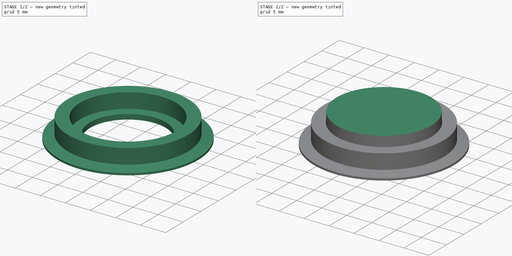
[diagram: build sequence overview — one tinted view per stage of 2, left to right]
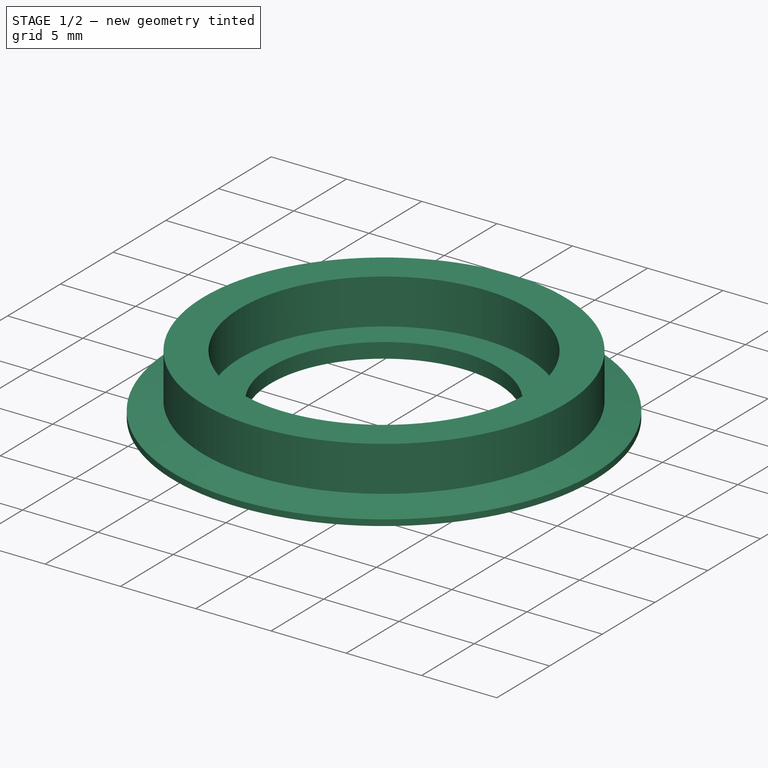
[diagram: stage 1 of 2 — iso view after this stage's code; geometry added in this stage tinted green]
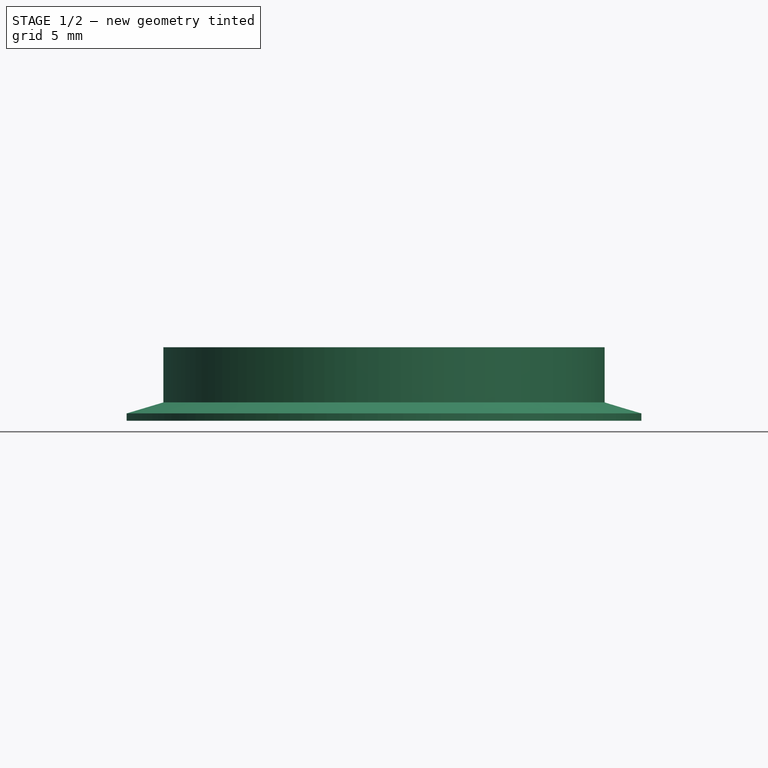
[diagram: stage 1 of 2 — front view after this stage's code; geometry added in this stage tinted green]
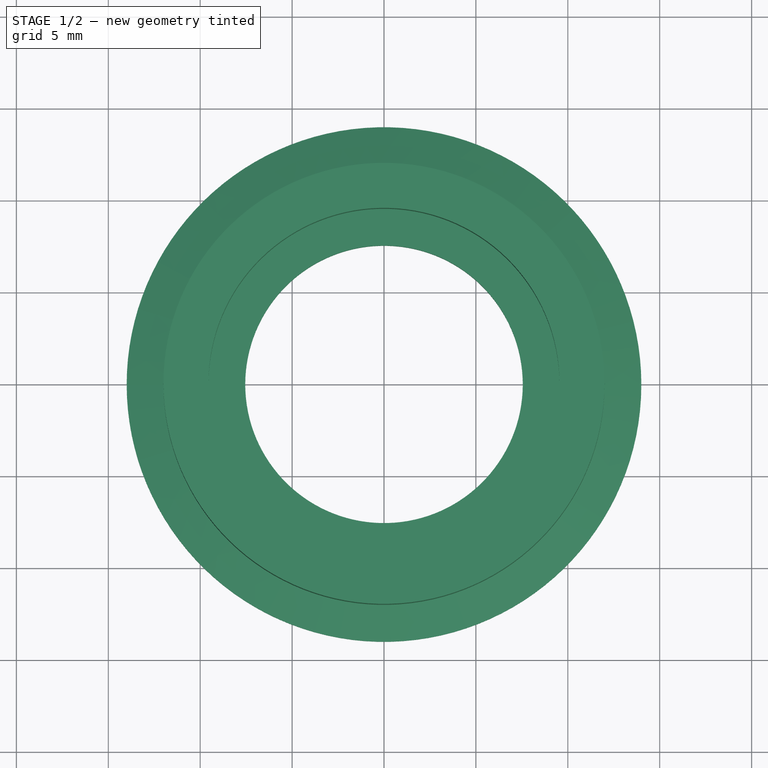
[diagram: stage 1 of 2 — top view after this stage's code; geometry added in this stage tinted green]
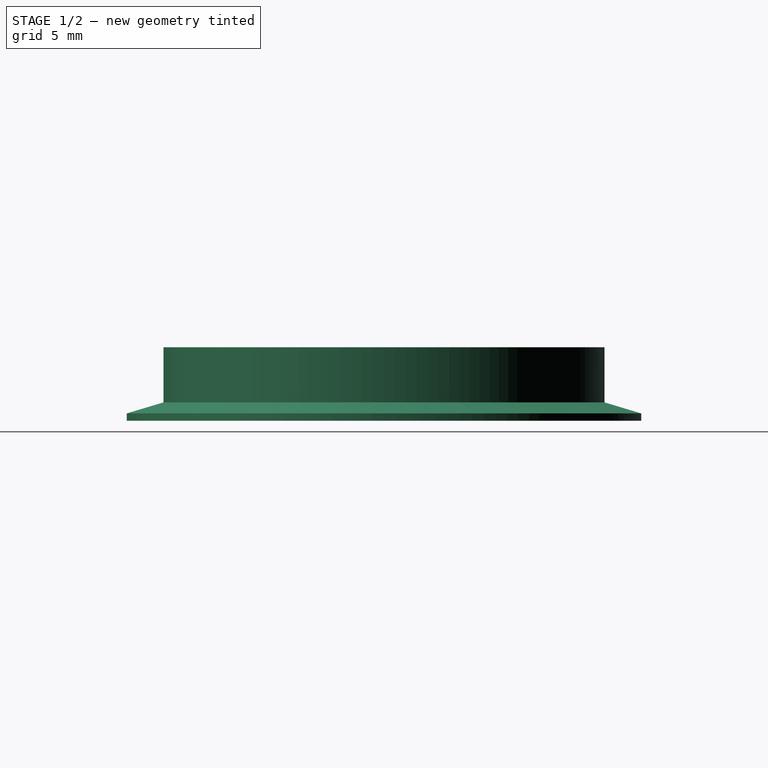
[diagram: stage 1 of 2 — right view after this stage's code; geometry added in this stage tinted green]
FCSTD DOCUMENT  (FreeCAD 0.16R6712 (Git))
Label: bearing_idler_v1
License: All rights reserved
LicenseURL: http://en.wikipedia.org/wiki/All_rights_reserved
objects: Part::Cylinder×1, Sketcher::SketchObject×1, PartDesign::Revolution×1
note: 4 computed .brp shape members not serialized (recipe doc carries the construction recipe); baked Part::Feature solids carry a one-line shape summary decoded from their .brp

FEATURE [Sketcher::SketchObject] Sketch
  Placement = pos=(0,0,0) rot=(1,0,0;1.5708rad)
  expr: Constraints[20] = 28mm / 2
  expr: Constraints[15] = 19.1mm / 2
  expr: Constraints[18] = 24mm / 2
  sketch-geometry (9):
    g0: LineSegment StartX=-14 StartY=0 StartZ=0 EndX=-14 EndY=0.4 EndZ=0
    g1: LineSegment StartX=-14 StartY=0.4 StartZ=0 EndX=-12 EndY=1 EndZ=0
    g2: LineSegment StartX=-12 StartY=1 StartZ=0 EndX=-12 EndY=4 EndZ=0
    g3: LineSegment StartX=-12 StartY=4 StartZ=0 EndX=-9.55 EndY=4 EndZ=0
    g4: LineSegment StartX=-9.55 StartY=4 StartZ=0 EndX=-9.55 EndY=1 EndZ=0
    g5: LineSegment StartX=-9.55 StartY=1 StartZ=0 EndX=-7.55 EndY=1 EndZ=0
    g6: LineSegment StartX=-7.55 StartY=1 StartZ=0 EndX=-7.55 EndY=0 EndZ=0
    g7: LineSegment StartX=-7.55 StartY=0 StartZ=0 EndX=-14 EndY=0 EndZ=0
    g8: LineSegment [constr] StartX=-12 StartY=1 StartZ=0 EndX=-9.55 EndY=1 EndZ=0
  constraints (26):
    c: PointOnObject(g0,g-1)
    c: Vertical(g0)
    c: Coincident(g0,g1)
    c: Vertical(g2)
    c: Coincident(g2,g3)
    c: Horizontal(g3)
    c: Coincident(g3,g4)
    c: Vertical(g4)
    c: Coincident(g4,g5)
    c: Horizontal(g5)
    c: Coincident(g5,g6)
    c: PointOnObject(g6,g-1)
    c: Vertical(g6)
    c: Coincident(g6,g7)
    c: Coincident(g7,g0)
    c: DistanceX(g3,g-1) = 9.55
    c: DistanceY(g6,g6) = 1
    c: DistanceY(g4,g4) = 3
    c: DistanceX(g2,g-1) = 12
    c: Coincident(g1,g2)
    c: DistanceX(g0,g-1) = 14
    c: Coincident(g8,g1)
    c: Coincident(g8,g4)
    c: Horizontal(g8)
    c: DistanceY(g0,g0) = 0.4
    c: DistanceX(g5,g5) = 2
FEATURE [PartDesign::Revolution] Revolution
  Angle = 360
  Axis = (0,0,1)
  Base = (0,0,0)
  Placement = pos=(0,0,0) rot=(1,0,0;1.5708rad)
  ReferenceAxis = -> Sketch [V_Axis]
  Sketch = -> Sketch
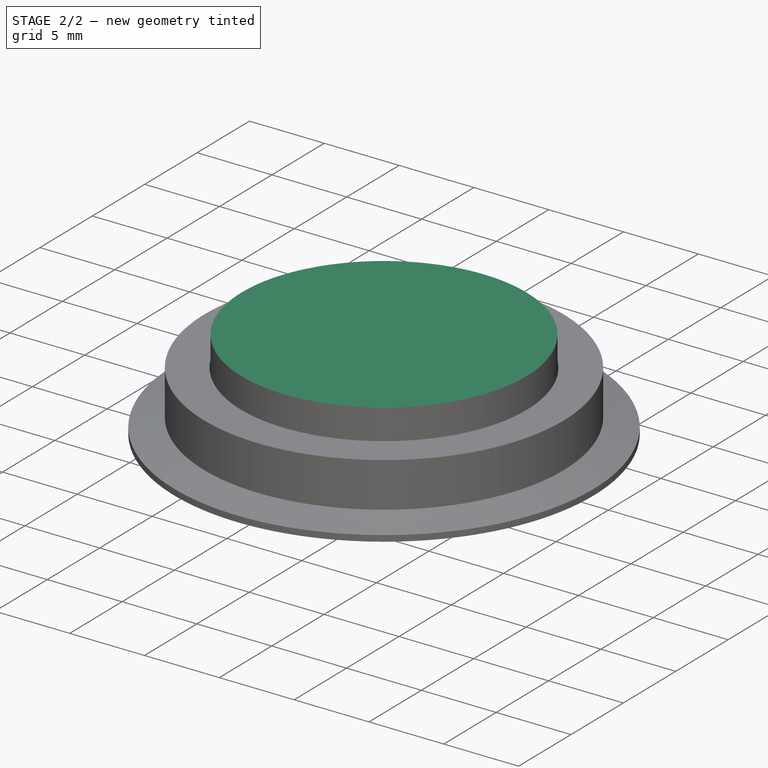
[diagram: stage 2 of 2 — iso view after this stage's code; geometry added in this stage tinted green]
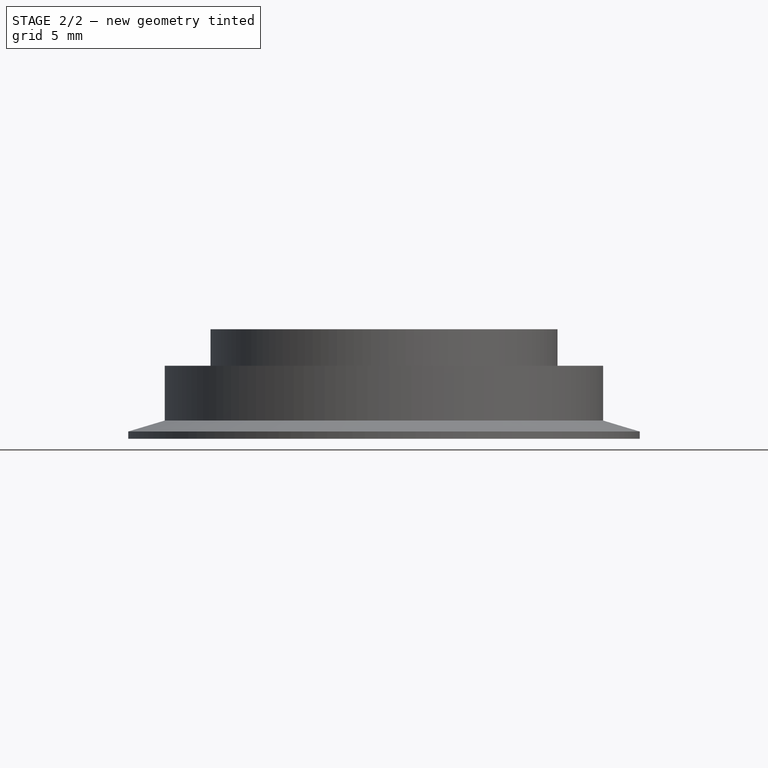
[diagram: stage 2 of 2 — front view after this stage's code; geometry added in this stage tinted green]
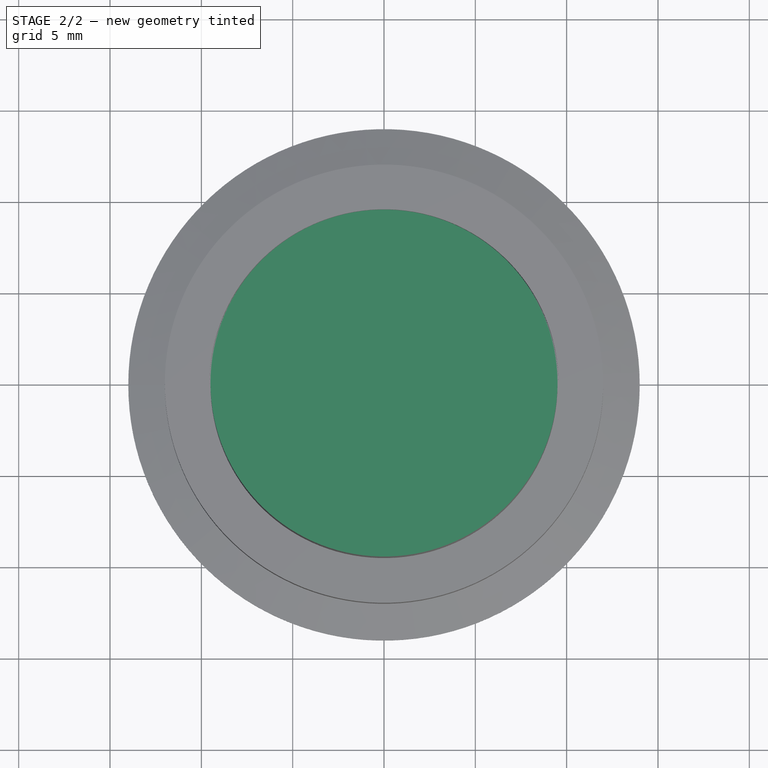
[diagram: stage 2 of 2 — top view after this stage's code; geometry added in this stage tinted green]
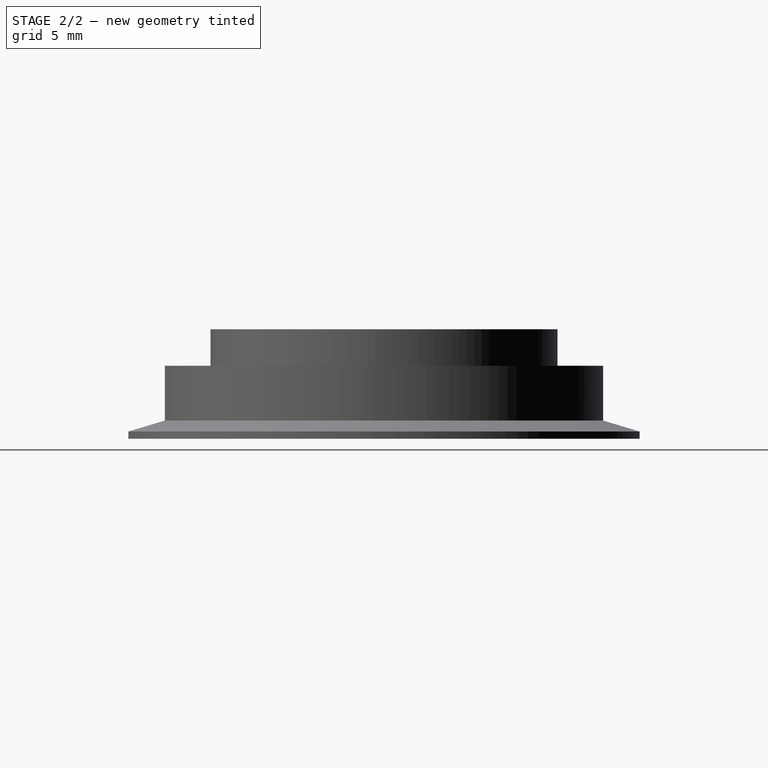
[diagram: stage 2 of 2 — right view after this stage's code; geometry added in this stage tinted green]
FEATURE [Part::Cylinder] Cylinder
  Angle = 360
  Height = 6
  Radius = 9.5
  expr: Radius = 19mm / 2
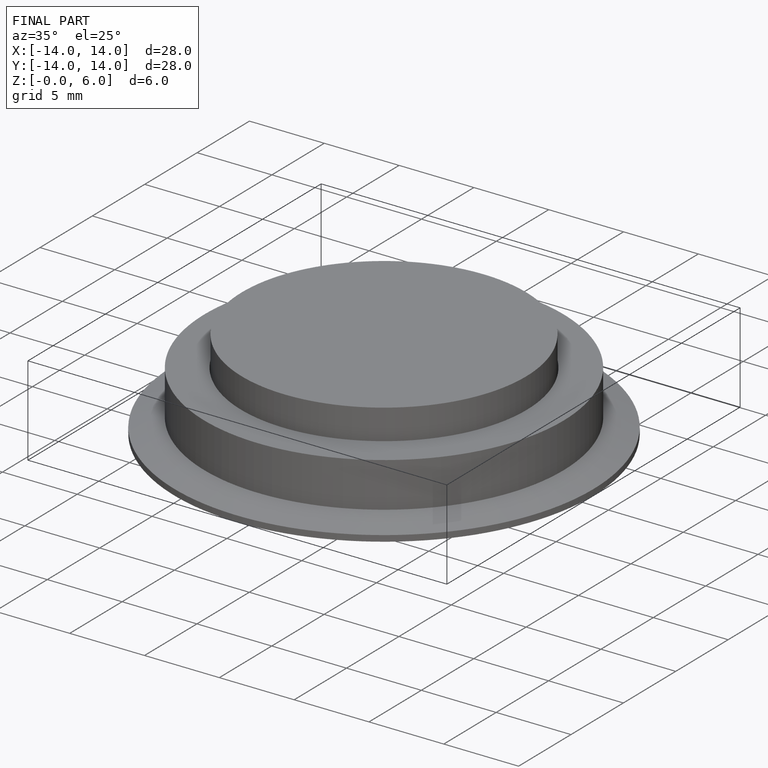
[diagram: finished part — iso view with bounding-box wireframe]
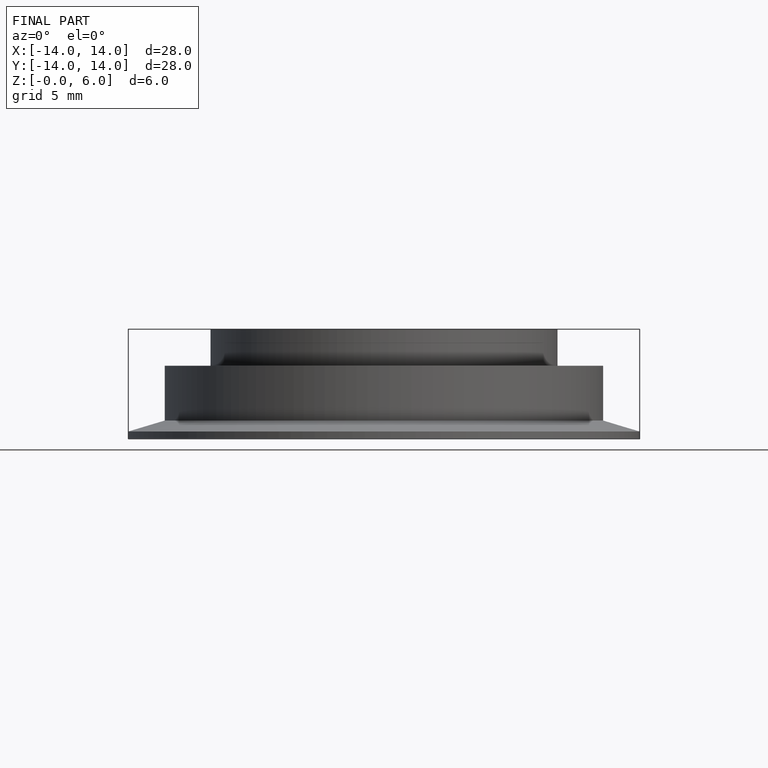
[diagram: finished part — front view with bounding-box wireframe]
